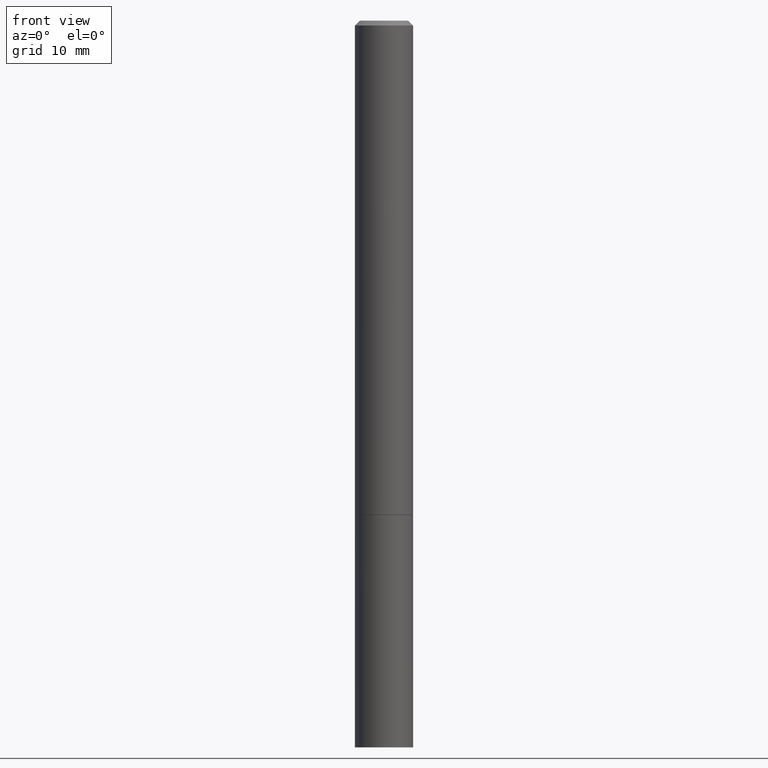
[diagram: clean part render]
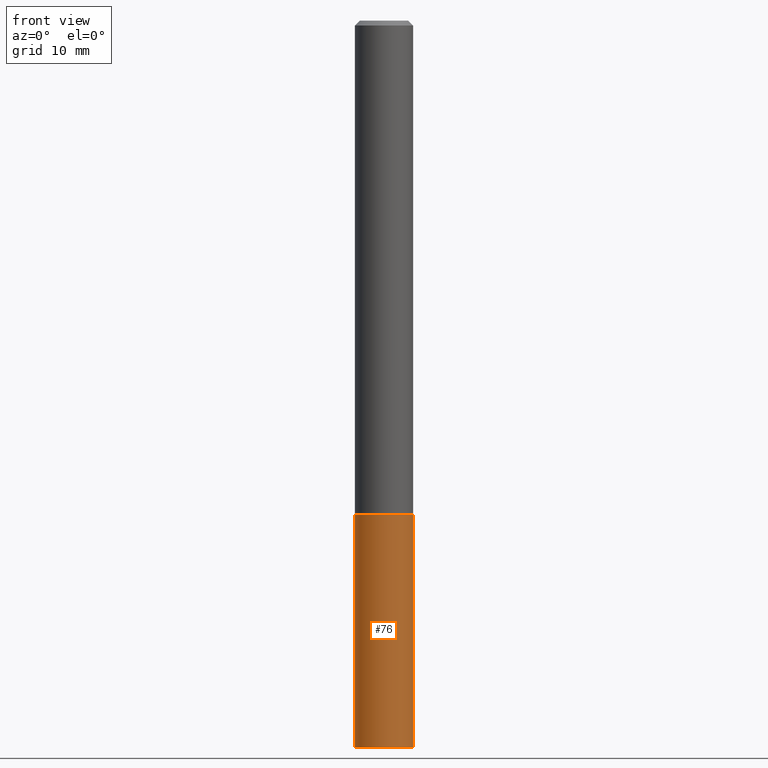
[diagram: same view with one face highlighted and labeled with its STEP entity id]
A machine part, front view. The second image highlights one B-rep face of the part: STEP entity #76.
In plain terms, the highlighted cylindrical surface (edge-blend (fillet) strip) has radius 2.9997 mm, axis along (-0, 0, 1).
Its self-contained STEP definition (entity closure, byte-faithful):
#8 = VERTEX_POINT ( 'NONE', #298 ) ;
#10 = DIRECTION ( 'NONE',  ( -2.445468806185136877E-29, 3.491481338843145188E-15, 1.000000000000000000 ) ) ;
#11 = EDGE_CURVE ( 'NONE', #37, #144, #153, .T. ) ;
#12 = CARTESIAN_POINT ( 'NONE',  ( 0.1180999999999999966, -8.246878922347480654E-16, 5.758764772215000440E-30 ) ) ;
#17 = DIRECTION ( 'NONE',  ( -2.445468806185136597E-29, 3.491481338843145583E-15, 1.000000000000000000 ) ) ;
#20 = CIRCLE ( 'NONE', #70, 0.1180999999999999966 ) ;
#29 = CARTESIAN_POINT ( 'NONE',  ( -0.1180999999999999966, -7.820944767866917317E-15, -2.952799999999999869 ) ) ;
#37 = VERTEX_POINT ( 'NONE', #29 ) ;
#63 = EDGE_CURVE ( 'NONE', #37, #253, #20, .T. ) ;
#67 = ORIENTED_EDGE ( 'NONE', *, *, #63, .T. ) ;
#70 = AXIS2_PLACEMENT_3D ( 'NONE', #176, #93, #293 ) ;
#71 = LINE ( 'NONE', #12, #200 ) ;
#76 = ADVANCED_FACE ( 'NONE', ( #324 ), #201, .T. ) ;
#93 = DIRECTION ( 'NONE',  ( -2.445468806185136597E-29, 3.491481338843145583E-15, 1.000000000000000000 ) ) ;
#95 = CARTESIAN_POINT ( 'NONE',  ( 0.1180999999999999966, -1.113433398957078679E-14, -2.952799999999999869 ) ) ;
#117 = DIRECTION ( 'NONE',  ( -2.445468806185136597E-29, 3.491481338843145583E-15, 1.000000000000000000 ) ) ;
#144 = VERTEX_POINT ( 'NONE', #205 ) ;
#149 = CIRCLE ( 'NONE', #333, 0.1180999999999999966 ) ;
#153 = LINE ( 'NONE', #347, #290 ) ;
#176 = CARTESIAN_POINT ( 'NONE',  ( 7.220980290903470182E-29, -1.030964609733603853E-14, -2.952799999999999869 ) ) ;
#180 = ORIENTED_EDGE ( 'NONE', *, *, #244, .T. ) ;
#194 = ORIENTED_EDGE ( 'NONE', *, *, #11, .F. ) ;
#200 = VECTOR ( 'NONE', #354, 39.37007874015748143 ) ;
#201 = CYLINDRICAL_SURFACE ( 'NONE', #258, 0.1180999999999999966 ) ;
#205 = CARTESIAN_POINT ( 'NONE',  ( -0.1180999999999999966, -7.820944767866917317E-15, -2.007899999999999796 ) ) ;
#240 = EDGE_CURVE ( 'NONE', #144, #8, #149, .T. ) ;
#244 = EDGE_CURVE ( 'NONE', #253, #8, #71, .T. ) ;
#253 = VERTEX_POINT ( 'NONE', #95 ) ;
#258 = AXIS2_PLACEMENT_3D ( 'NONE', #296, #117, #266 ) ;
#266 = DIRECTION ( 'NONE',  ( 1.000000000000000000, -6.982962677686266711E-15, 4.876176775795936353E-29 ) ) ;
#273 = EDGE_LOOP ( 'NONE', ( #194, #67, #180, #294 ) ) ;
#290 = VECTOR ( 'NONE', #10, 39.37007874015748143 ) ;
#293 = DIRECTION ( 'NONE',  ( 1.000000000000000000, -6.982962677686273021E-15, 0.000000000000000000 ) ) ;
#294 = ORIENTED_EDGE ( 'NONE', *, *, #240, .F. ) ;
#296 = CARTESIAN_POINT ( 'NONE',  ( 0.000000000000000000, 0.000000000000000000, 0.000000000000000000 ) ) ;
#298 = CARTESIAN_POINT ( 'NONE',  ( 0.1180999999999999966, -7.835233272497899184E-15, -2.007899999999999796 ) ) ;
#300 = DIRECTION ( 'NONE',  ( 1.000000000000000000, -6.982962677686265133E-15, 0.000000000000000000 ) ) ;
#324 = FACE_OUTER_BOUND ( 'NONE', #273, .T. ) ;
#330 = CARTESIAN_POINT ( 'NONE',  ( 4.910256815939135309E-29, -7.010545380263150922E-15, -2.007899999999999796 ) ) ;
#333 = AXIS2_PLACEMENT_3D ( 'NONE', #330, #17, #300 ) ;
#347 = CARTESIAN_POINT ( 'NONE',  ( -0.1180999999999999966, 8.391509709326782957E-16, -5.809262341591043784E-30 ) ) ;
#354 = DIRECTION ( 'NONE',  ( -2.445468806185136877E-29, 3.491481338843145188E-15, 1.000000000000000000 ) ) ;